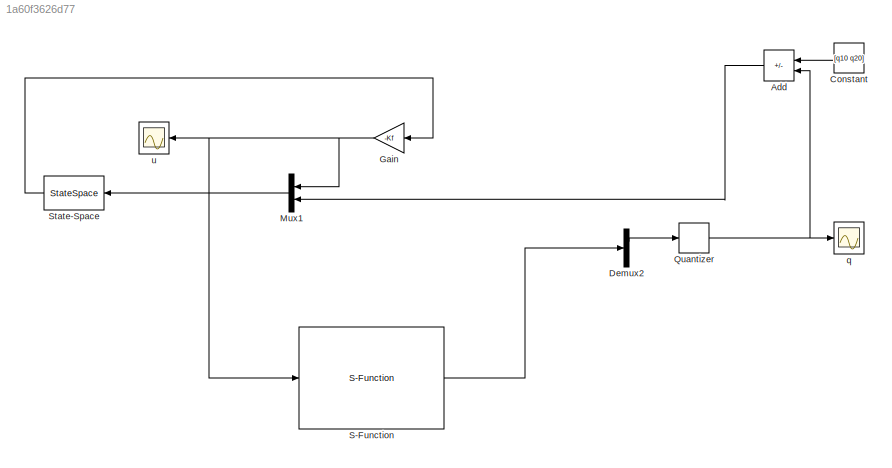
MODEL slx_1a60f3626d77
KIND model
CONFIG AbsTol = auto
CONFIG EnableMultiTasking = off
CONFIG FixedStep = Ts
CONFIG MaxStep = auto
CONFIG MinStep = auto
CONFIG RelTol = 1e-3
CONFIG SampleTimeConstraint = Unconstrained
CONFIG SolverName = ode4
CONFIG StartTime = 0.0
CONFIG StopTime = 5
BLOCK [Sum] Add
  IconShape = rectangular
  Inputs = -+
BLOCK [Constant] Constant
  Value = [q10  q20]
BLOCK [Demux] Demux2
  Outputs = 2
BLOCK [Gain] Gain
  Gain = -Kf
  Multiplication = Matrix(K*u)
BLOCK [Mux] Mux1
  DisplayOption = bar
  Inputs = 2
BLOCK [Quantizer] Quantizer
  QuantizationInterval = [2*pi/2048  2*pi/2048]
BLOCK [S-Function] S-Function
  EnableBusSupport = off
  FunctionName = Inverted_Pendulum_Sys
  Parameters = X0,Ph
  SFcnIsStateOwnerBlock = off
  SFunctionDeploymentMode = off
BLOCK [StateSpace] State-Space
  A = A_observer
  B = [B L]
  C = eye(4)
  D = zeros(4,3)
  InitialCondition = 0
  NameLocation = top
BLOCK [Scope] q
  Floating = off
  NumInputPorts = 1
  ScopeSpecificationString = Simulink.scopes.TimeScopeBlockCfg('CurrentConfiguration', extmgr.ConfigurationSet(extmgr.Configuration('Core','General UI',true),extmgr.Configuration('Core','Source UI',true),extmgr.Configuration('Sources','WiredSimulink',true,'DataLoggingVariableName','qm','DataLogging',true,'DataLoggingSaveFormat','Array'),extmgr.Configuration('Visuals','Time Domain',true,'SerializedDisplays',{struct('MinYLimRea...<+1522ch>
BLOCK [Scope] u
  Floating = off
  NumInputPorts = 1
  ScopeSpecificationString = Simulink.scopes.TimeScopeBlockCfg('CurrentConfiguration', extmgr.ConfigurationSet(extmgr.Configuration('Core','General UI',true),extmgr.Configuration('Core','Source UI',true),extmgr.Configuration('Sources','WiredSimulink',true,'DataLoggingVariableName','u','DataLogging',true,'DataLoggingSaveFormat','Array'),extmgr.Configuration('Visuals','Time Domain',true,'SerializedDisplays',{struct('MinYLimReal...<+1476ch>
LINE Add:1 -> Mux1:2
LINE Constant:1 -> Add:1
LINE Demux2:1 -> Quantizer:1
NET Gain:1 -> Mux1:1, S-Function:1, u:1
LINE Mux1:1 -> State-Space:1
NET Quantizer:1 -> Add:2, q:1
LINE S-Function:1 -> Demux2:1
LINE State-Space:1 -> Gain:1
note: NET lines group one-source signal fan-out (src -> all destinations, sorted); 1:1 wires keep LINE
